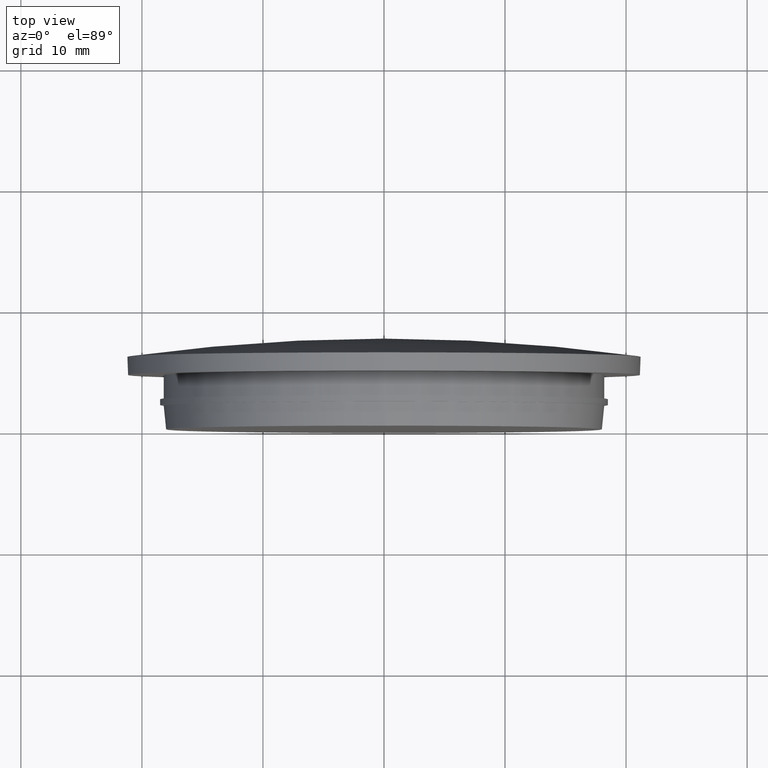
[diagram: clean part render]
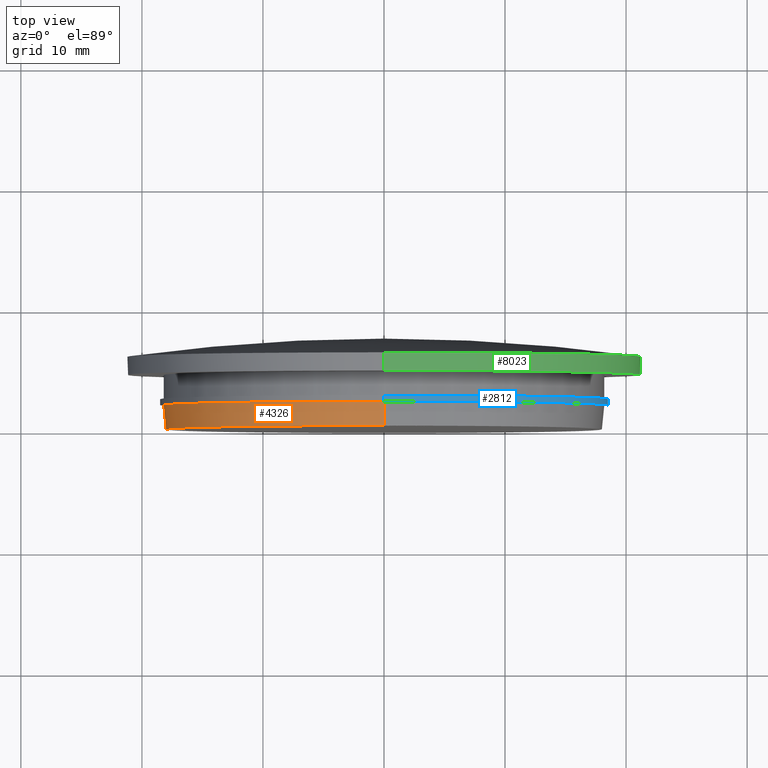
[diagram: same view with three faces highlighted in distinct colors, each labeled with its STEP entity id]
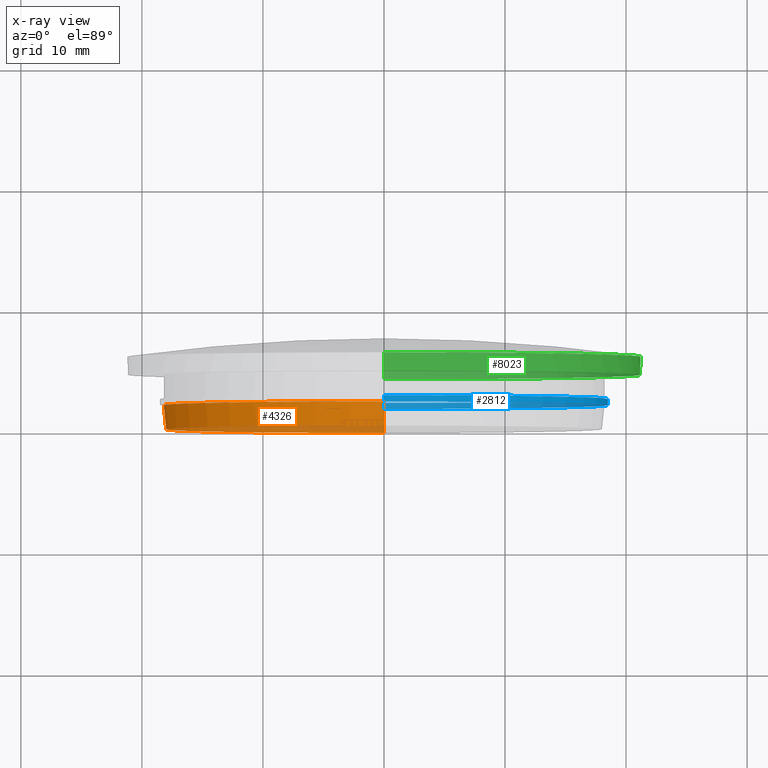
[diagram: x-ray of the same camera — body ghosted, the three highlighted faces saturated]
A machine part, top view with three faces highlighted in distinct colors.
The next image is the same camera in x-ray (body ghosted, the three faces saturated) — at least one of them is partly hidden behind the body in this view.
Their STEP definitions:

[orange] entity #4326 — the highlighted conical surface has half-angle 5.711 deg.
#579 = VERTEX_POINT ( 'NONE', #12415 ) ;
#799 = DIRECTION ( 'NONE',  ( 0.0000000000000000000, 0.0000000000000000000, 1.000000000000000000 ) ) ;
#905 = AXIS2_PLACEMENT_3D ( 'NONE', #4930, #6010, #799 ) ;
#1725 = LINE ( 'NONE', #6241, #8898 ) ;
#1819 = CARTESIAN_POINT ( 'NONE',  ( 2.228857174448182900E-015, 2.000000000000000000, -18.19999999999999900 ) ) ;
#1891 = DIRECTION ( 'NONE',  ( 0.0000000000000000000, 0.0000000000000000000, 1.000000000000000000 ) ) ;
#2246 = CIRCLE ( 'NONE', #10190, 18.19999999999999900 ) ;
#2266 = CARTESIAN_POINT ( 'NONE',  ( 0.0000000000000000000, 2.000000000000000000, 0.0000000000000000000 ) ) ;
#2303 = VERTEX_POINT ( 'NONE', #5364 ) ;
#3453 = CONICAL_SURFACE ( 'NONE', #5938, 18.19999999999999900, 0.09966865249116314800 ) ;
#4172 = EDGE_CURVE ( 'NONE', #579, #2303, #1725, .T. ) ;
#4181 = ORIENTED_EDGE ( 'NONE', *, *, #4931, .T. ) ;
#4326 = ADVANCED_FACE ( 'NONE', ( #12266 ), #3453, .T. ) ;
#4387 = VECTOR ( 'NONE', #10902, 1000.000000000000100 ) ;
#4930 = CARTESIAN_POINT ( 'NONE',  ( 0.0000000000000000000, 0.0000000000000000000, 0.0000000000000000000 ) ) ;
#4931 = EDGE_CURVE ( 'NONE', #6314, #579, #10746, .T. ) ;
#5305 = DIRECTION ( 'NONE',  ( 0.0000000000000000000, 0.9950371902099889300, 0.09950371902100001200 ) ) ;
#5364 = CARTESIAN_POINT ( 'NONE',  ( 0.0000000000000000000, 2.000000000000000000, 18.19999999999999900 ) ) ;
#5881 = CARTESIAN_POINT ( 'NONE',  ( 2.216610706456709200E-015, 0.0000000000000000000, -18.00000000000000000 ) ) ;
#5938 = AXIS2_PLACEMENT_3D ( 'NONE', #12000, #10067, #1891 ) ;
#5941 = ORIENTED_EDGE ( 'NONE', *, *, #10852, .F. ) ;
#6010 = DIRECTION ( 'NONE',  ( 0.0000000000000000000, 1.000000000000000000, 0.0000000000000000000 ) ) ;
#6241 = CARTESIAN_POINT ( 'NONE',  ( 0.0000000000000000000, 2.000000000000000000, 18.19999999999999900 ) ) ;
#6301 = EDGE_CURVE ( 'NONE', #2303, #8444, #2246, .T. ) ;
#6314 = VERTEX_POINT ( 'NONE', #5881 ) ;
#6712 = ORIENTED_EDGE ( 'NONE', *, *, #4172, .T. ) ;
#8444 = VERTEX_POINT ( 'NONE', #13235 ) ;
#8848 = ORIENTED_EDGE ( 'NONE', *, *, #6301, .T. ) ;
#8898 = VECTOR ( 'NONE', #5305, 1000.000000000000100 ) ;
#9236 = DIRECTION ( 'NONE',  ( 0.0000000000000000000, 0.0000000000000000000, 1.000000000000000000 ) ) ;
#9366 = DIRECTION ( 'NONE',  ( -0.0000000000000000000, -1.000000000000000000, -0.0000000000000000000 ) ) ;
#9801 = LINE ( 'NONE', #1819, #4387 ) ;
#10067 = DIRECTION ( 'NONE',  ( 0.0000000000000000000, 1.000000000000000000, 0.0000000000000000000 ) ) ;
#10190 = AXIS2_PLACEMENT_3D ( 'NONE', #2266, #9366, #9236 ) ;
#10746 = CIRCLE ( 'NONE', #905, 18.00000000000000000 ) ;
#10852 = EDGE_CURVE ( 'NONE', #6314, #8444, #9801, .T. ) ;
#10902 = DIRECTION ( 'NONE',  ( 1.218569110023252800E-017, 0.9950371902099889300, -0.09950371902100001200 ) ) ;
#12000 = CARTESIAN_POINT ( 'NONE',  ( 0.0000000000000000000, 2.000000000000000000, 0.0000000000000000000 ) ) ;
#12266 = FACE_OUTER_BOUND ( 'NONE', #12713, .T. ) ;
#12415 = CARTESIAN_POINT ( 'NONE',  ( 0.0000000000000000000, 0.0000000000000000000, 18.00000000000000000 ) ) ;
#12713 = EDGE_LOOP ( 'NONE', ( #5941, #4181, #6712, #8848 ) ) ;
#13235 = CARTESIAN_POINT ( 'NONE',  ( 2.228857174448182900E-015, 2.000000000000000000, -18.19999999999999900 ) ) ;

[blue] entity #2812 — the highlighted cylindrical surface (partial cylindrical patch) has radius 18.5 mm, axis along (-0, -1, -0).
#311 = DIRECTION ( 'NONE',  ( 0.0000000000000000000, 1.000000000000000000, 0.0000000000000000000 ) ) ;
#642 = VECTOR ( 'NONE', #2101, 1000.000000000000000 ) ;
#720 = CARTESIAN_POINT ( 'NONE',  ( 2.265596578422603400E-015, 2.000000000000000000, 18.50000000000000000 ) ) ;
#875 = EDGE_CURVE ( 'NONE', #11258, #11644, #1908, .T. ) ;
#1167 = VECTOR ( 'NONE', #13022, 1000.000000000000000 ) ;
#1250 = ORIENTED_EDGE ( 'NONE', *, *, #8604, .F. ) ;
#1492 = CARTESIAN_POINT ( 'NONE',  ( 2.265596578422603400E-015, 2.500000000000000000, 18.50000000000000000 ) ) ;
#1727 = VERTEX_POINT ( 'NONE', #1492 ) ;
#1908 = CIRCLE ( 'NONE', #6342, 18.50000000000000000 ) ;
#2101 = DIRECTION ( 'NONE',  ( -0.0000000000000000000, -1.000000000000000000, -0.0000000000000000000 ) ) ;
#2341 = CIRCLE ( 'NONE', #3715, 18.50000000000000000 ) ;
#2552 = FACE_OUTER_BOUND ( 'NONE', #5705, .T. ) ;
#2812 = ADVANCED_FACE ( 'NONE', ( #2552 ), #4920, .T. ) ;
#3715 = AXIS2_PLACEMENT_3D ( 'NONE', #11406, #311, #7317 ) ;
#3855 = ORIENTED_EDGE ( 'NONE', *, *, #875, .T. ) ;
#4257 = DIRECTION ( 'NONE',  ( 0.0000000000000000000, 0.0000000000000000000, 1.000000000000000000 ) ) ;
#4455 = ORIENTED_EDGE ( 'NONE', *, *, #8466, .F. ) ;
#4831 = CARTESIAN_POINT ( 'NONE',  ( 2.265596578422603400E-015, 2.500000000000000000, 18.50000000000000000 ) ) ;
#4920 = CYLINDRICAL_SURFACE ( 'NONE', #10363, 18.50000000000000000 ) ;
#5089 = LINE ( 'NONE', #6058, #642 ) ;
#5705 = EDGE_LOOP ( 'NONE', ( #1250, #10466, #3855, #4455 ) ) ;
#6058 = CARTESIAN_POINT ( 'NONE',  ( 0.0000000000000000000, 2.500000000000000000, -18.50000000000000000 ) ) ;
#6342 = AXIS2_PLACEMENT_3D ( 'NONE', #10255, #8367, #4257 ) ;
#7023 = DIRECTION ( 'NONE',  ( 0.0000000000000000000, 0.0000000000000000000, -1.000000000000000000 ) ) ;
#7317 = DIRECTION ( 'NONE',  ( 0.0000000000000000000, 0.0000000000000000000, 1.000000000000000000 ) ) ;
#8367 = DIRECTION ( 'NONE',  ( 0.0000000000000000000, 1.000000000000000000, 0.0000000000000000000 ) ) ;
#8466 = EDGE_CURVE ( 'NONE', #10060, #11644, #5089, .T. ) ;
#8604 = EDGE_CURVE ( 'NONE', #1727, #10060, #2341, .T. ) ;
#9193 = CARTESIAN_POINT ( 'NONE',  ( 0.0000000000000000000, 2.500000000000000000, 0.0000000000000000000 ) ) ;
#10060 = VERTEX_POINT ( 'NONE', #12824 ) ;
#10092 = LINE ( 'NONE', #4831, #1167 ) ;
#10255 = CARTESIAN_POINT ( 'NONE',  ( 0.0000000000000000000, 2.000000000000000000, 0.0000000000000000000 ) ) ;
#10363 = AXIS2_PLACEMENT_3D ( 'NONE', #9193, #13167, #7023 ) ;
#10466 = ORIENTED_EDGE ( 'NONE', *, *, #12394, .T. ) ;
#11258 = VERTEX_POINT ( 'NONE', #720 ) ;
#11406 = CARTESIAN_POINT ( 'NONE',  ( 0.0000000000000000000, 2.500000000000000000, 0.0000000000000000000 ) ) ;
#11644 = VERTEX_POINT ( 'NONE', #12629 ) ;
#12394 = EDGE_CURVE ( 'NONE', #1727, #11258, #10092, .T. ) ;
#12629 = CARTESIAN_POINT ( 'NONE',  ( 0.0000000000000000000, 2.000000000000000000, -18.50000000000000000 ) ) ;
#12824 = CARTESIAN_POINT ( 'NONE',  ( 0.0000000000000000000, 2.500000000000000000, -18.50000000000000000 ) ) ;
#13022 = DIRECTION ( 'NONE',  ( -0.0000000000000000000, -1.000000000000000000, -0.0000000000000000000 ) ) ;
#13167 = DIRECTION ( 'NONE',  ( -0.0000000000000000000, -1.000000000000000000, -0.0000000000000000000 ) ) ;

[green] entity #8023 — the highlighted cylindrical surface (partial cylindrical patch) has radius 21.2 mm, axis along (-0, 1, -0).
#377 = CARTESIAN_POINT ( 'NONE',  ( 0.0000000000000000000, 6.000000000000003600, 0.0000000000000000000 ) ) ;
#468 = ORIENTED_EDGE ( 'NONE', *, *, #4932, .F. ) ;
#551 = DIRECTION ( 'NONE',  ( -0.0000000000000000000, 1.000000000000000000, -0.0000000000000000000 ) ) ;
#565 = VECTOR ( 'NONE', #11893, 1000.000000000000000 ) ;
#943 = DIRECTION ( 'NONE',  ( -0.0000000000000000000, 1.000000000000000000, -0.0000000000000000000 ) ) ;
#991 = ORIENTED_EDGE ( 'NONE', *, *, #7367, .F. ) ;
#1005 = CARTESIAN_POINT ( 'NONE',  ( 2.596251214192388800E-015, 4.500000000000004400, -21.19999999999999900 ) ) ;
#1818 = DIRECTION ( 'NONE',  ( 0.0000000000000000000, 0.0000000000000000000, 1.000000000000000000 ) ) ;
#1938 = AXIS2_PLACEMENT_3D ( 'NONE', #6801, #2758, #1818 ) ;
#1967 = EDGE_CURVE ( 'NONE', #2741, #2731, #4959, .T. ) ;
#2731 = VERTEX_POINT ( 'NONE', #1005 ) ;
#2741 = VERTEX_POINT ( 'NONE', #12214 ) ;
#2758 = DIRECTION ( 'NONE',  ( -0.0000000000000000000, 1.000000000000000000, -0.0000000000000000000 ) ) ;
#3236 = EDGE_LOOP ( 'NONE', ( #6699, #9837, #3449, #991, #468 ) ) ;
#3291 = DIRECTION ( 'NONE',  ( 0.0000000000000000000, 0.0000000000000000000, 1.000000000000000000 ) ) ;
#3449 = ORIENTED_EDGE ( 'NONE', *, *, #8850, .F. ) ;
#3871 = CIRCLE ( 'NONE', #10192, 21.19999999999999900 ) ;
#4932 = EDGE_CURVE ( 'NONE', #2741, #10778, #5811, .T. ) ;
#4945 = DIRECTION ( 'NONE',  ( 0.0000000000000000000, 0.0000000000000000000, 1.000000000000000000 ) ) ;
#4959 = CIRCLE ( 'NONE', #1938, 21.19999999999999900 ) ;
#5012 = VECTOR ( 'NONE', #8024, 1000.000000000000000 ) ;
#5142 = CARTESIAN_POINT ( 'NONE',  ( 2.596251214192388800E-015, 6.000000000000003600, -21.19999999999999900 ) ) ;
#5716 = VERTEX_POINT ( 'NONE', #9496 ) ;
#5811 = LINE ( 'NONE', #11091, #5012 ) ;
#6149 = CARTESIAN_POINT ( 'NONE',  ( 0.0000000000000000000, 6.000000000000003600, 0.0000000000000000000 ) ) ;
#6507 = DIRECTION ( 'NONE',  ( 0.0000000000000000000, 0.0000000000000000000, 1.000000000000000000 ) ) ;
#6642 = CIRCLE ( 'NONE', #9424, 21.19999999999999900 ) ;
#6652 = CARTESIAN_POINT ( 'NONE',  ( 0.0000000000000000000, 4.500000000000000900, 0.0000000000000000000 ) ) ;
#6699 = ORIENTED_EDGE ( 'NONE', *, *, #1967, .T. ) ;
#6774 = LINE ( 'NONE', #9735, #565 ) ;
#6801 = CARTESIAN_POINT ( 'NONE',  ( 0.0000000000000000000, 4.500000000000004400, 0.0000000000000000000 ) ) ;
#7351 = CARTESIAN_POINT ( 'NONE',  ( 0.0000000000000000000, 6.000000000000003600, 21.19999999999999900 ) ) ;
#7367 = EDGE_CURVE ( 'NONE', #10778, #5716, #3871, .T. ) ;
#8023 = ADVANCED_FACE ( 'NONE', ( #11144 ), #12270, .T. ) ;
#8024 = DIRECTION ( 'NONE',  ( -0.0000000000000000000, 1.000000000000000000, -0.0000000000000000000 ) ) ;
#8763 = AXIS2_PLACEMENT_3D ( 'NONE', #6652, #551, #6507 ) ;
#8850 = EDGE_CURVE ( 'NONE', #5716, #9875, #6642, .T. ) ;
#9424 = AXIS2_PLACEMENT_3D ( 'NONE', #377, #9538, #3291 ) ;
#9496 = CARTESIAN_POINT ( 'NONE',  ( 21.20000000000003100, 6.000000000000004400, 0.0000000000000000000 ) ) ;
#9538 = DIRECTION ( 'NONE',  ( -0.0000000000000000000, 1.000000000000000000, -0.0000000000000000000 ) ) ;
#9735 = CARTESIAN_POINT ( 'NONE',  ( 2.596251214192388800E-015, 4.500000000000000900, -21.19999999999999900 ) ) ;
#9837 = ORIENTED_EDGE ( 'NONE', *, *, #10932, .T. ) ;
#9875 = VERTEX_POINT ( 'NONE', #5142 ) ;
#10192 = AXIS2_PLACEMENT_3D ( 'NONE', #6149, #943, #4945 ) ;
#10778 = VERTEX_POINT ( 'NONE', #7351 ) ;
#10932 = EDGE_CURVE ( 'NONE', #2731, #9875, #6774, .T. ) ;
#11091 = CARTESIAN_POINT ( 'NONE',  ( 0.0000000000000000000, 4.500000000000000900, 21.19999999999999900 ) ) ;
#11144 = FACE_OUTER_BOUND ( 'NONE', #3236, .T. ) ;
#11893 = DIRECTION ( 'NONE',  ( -0.0000000000000000000, 1.000000000000000000, -0.0000000000000000000 ) ) ;
#12214 = CARTESIAN_POINT ( 'NONE',  ( 0.0000000000000000000, 4.500000000000004400, 21.19999999999999900 ) ) ;
#12270 = CYLINDRICAL_SURFACE ( 'NONE', #8763, 21.19999999999999900 ) ;